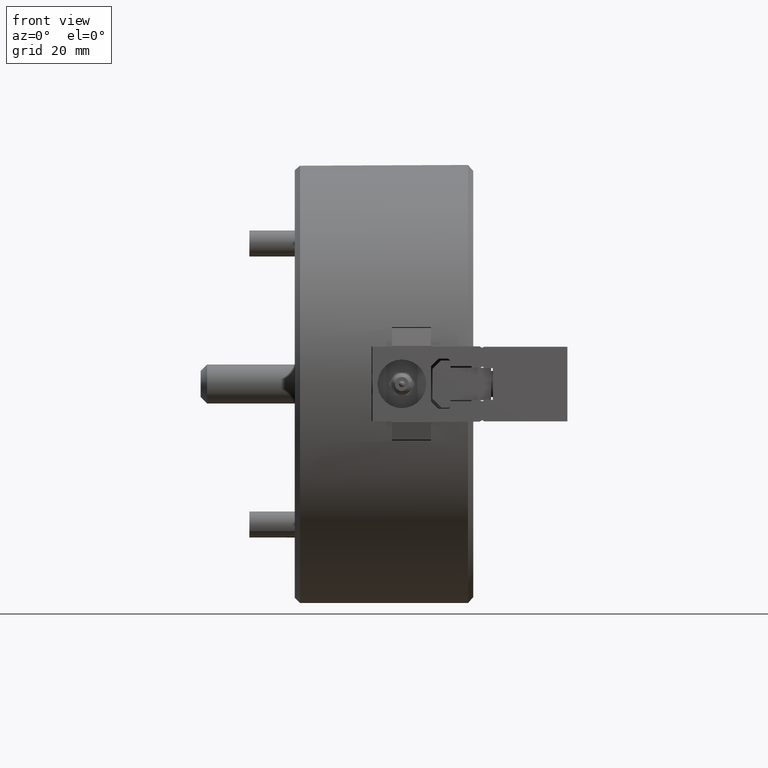
[diagram: clean part render]
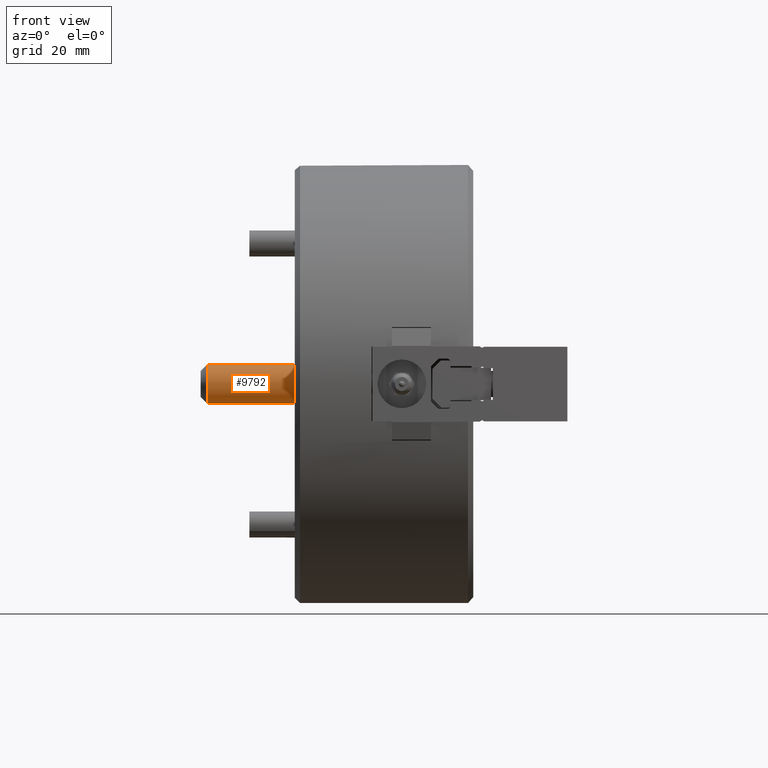
[diagram: same view with one face highlighted and labeled with its STEP entity id]
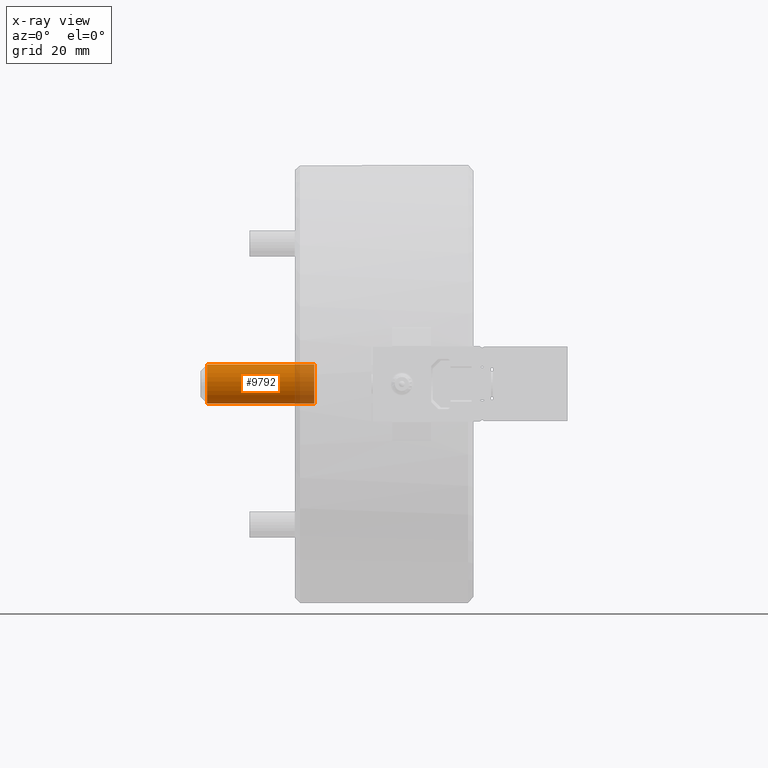
[diagram: x-ray of the same camera — body ghosted, the highlighted face saturated]
A machine part, front view. The second image highlights one B-rep face of the part: STEP entity #9792.
The next image is the same camera in x-ray: the body ghosted, the highlighted face saturated — about 18% of this face is hidden behind the body in this view.
In plain terms, the highlighted cylindrical surface (bore or boss wall) has radius 6 mm, axis along (1, 0, 0).
Its self-contained STEP definition (entity closure, byte-faithful):
#107=CYLINDRICAL_SURFACE('',#10693,6.);
#553=CIRCLE('',#10688,6.);
#555=CIRCLE('',#10692,5.99999999999999);
#2936=ORIENTED_EDGE('',*,*,#4536,.F.);
#2937=ORIENTED_EDGE('',*,*,#4538,.T.);
#4536=EDGE_CURVE('',#5451,#5451,#553,.T.);
#4538=EDGE_CURVE('',#5453,#5453,#555,.T.);
#5451=VERTEX_POINT('',#16377);
#5453=VERTEX_POINT('',#16383);
#7963=EDGE_LOOP('',(#2936));
#7964=EDGE_LOOP('',(#2937));
#8711=FACE_BOUND('',#7963,.T.);
#8712=FACE_BOUND('',#7964,.T.);
#9792=ADVANCED_FACE('',(#8711,#8712),#107,.T.);
#10688=AXIS2_PLACEMENT_3D('',#16376,#13274,#13275);
#10692=AXIS2_PLACEMENT_3D('',#16382,#13282,#13283);
#10693=AXIS2_PLACEMENT_3D('',#16384,#13284,#13285);
#13274=DIRECTION('',(1.,0.,0.));
#13275=DIRECTION('',(0.,0.,-1.));
#13282=DIRECTION('',(1.,0.,0.));
#13283=DIRECTION('',(0.,0.,-1.));
#13284=DIRECTION('',(1.,0.,0.));
#13285=DIRECTION('',(0.,0.,-1.));
#16376=CARTESIAN_POINT('',(-48.9999999999999,0.,0.));
#16377=CARTESIAN_POINT('',(-48.9999999999999,0.,-6.));
#16382=CARTESIAN_POINT('',(-81.9999999999999,0.,0.));
#16383=CARTESIAN_POINT('',(-81.9999999999999,0.,-5.99999999999999));
#16384=CARTESIAN_POINT('',(-3.14999999999987,0.,0.));